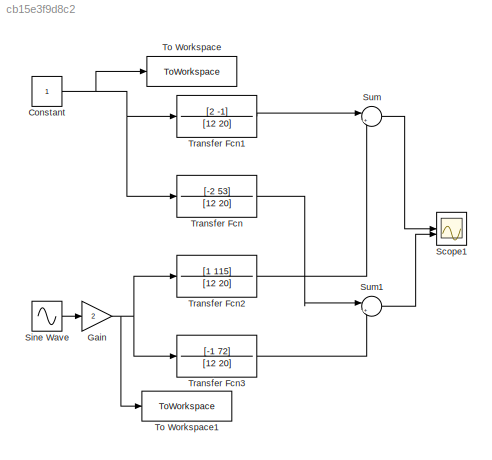
MODEL slx_cb15e3f9d8c2
KIND model
CONFIG AbsTol = auto
CONFIG EnableMultiTasking = off
CONFIG FixedStep = 0.0001
CONFIG MaxStep = auto
CONFIG MinStep = auto
CONFIG RelTol = 1e-3
CONFIG SampleTimeConstraint = Unconstrained
CONFIG SolverName = FixedStepAuto
CONFIG StartTime = 0.0
CONFIG StopTime = 50.0
BLOCK [Constant] Constant
  SampleTime = -1
BLOCK [Gain] Gain
  Gain = 2
BLOCK [Scope] Scope1
  Floating = off
  NumInputPorts = 2
  ScopeSpecificationString = Simulink.scopes.TimeScopeBlockCfg('CurrentConfiguration', extmgr.ConfigurationSet(extmgr.Configuration('Core','General UI',true),extmgr.Configuration('Core','Source UI',true),extmgr.Configuration('Sources','WiredSimulink',true,'DataLoggingVariableName','ScopeData1'),extmgr.Configuration('Visuals','Time Domain',true,'SerializedDisplays',{struct('MinYLimReal','-12.39699','MaxYLimReal','12.45749','YL...<+1375ch>
BLOCK [Sin] Sine Wave
  SampleTime = 0
BLOCK [Sum] Sum
  Inputs = |++
BLOCK [Sum] Sum1
  Inputs = |++
BLOCK [ToWorkspace] To Workspace
  FixptAsFi = on
  MaxDataPoints = inf
  SampleTime = -1
  SaveFormat = Timeseries
  VariableName = simout
BLOCK [ToWorkspace] To Workspace1
  FixptAsFi = on
  MaxDataPoints = inf
  SampleTime = -1
  SaveFormat = Timeseries
  VariableName = simout1
BLOCK [TransferFcn] Transfer Fcn
  Denominator = [12 20]
  Numerator = [-2 53]
BLOCK [TransferFcn] Transfer Fcn1
  Denominator = [12 20]
  Numerator = [2 -1]
BLOCK [TransferFcn] Transfer Fcn2
  Denominator = [12 20]
  Numerator = [1 115]
BLOCK [TransferFcn] Transfer Fcn3
  Denominator = [12 20]
  Numerator = [-1 72]
NET Constant:1 -> To Workspace:1, Transfer Fcn1:1, Transfer Fcn:1
NET Gain:1 -> To Workspace1:1, Transfer Fcn2:1, Transfer Fcn3:1
LINE Sine Wave:1 -> Gain:1
LINE Sum1:1 -> Scope1:2
LINE Sum:1 -> Scope1:1
LINE Transfer Fcn1:1 -> Sum:1
LINE Transfer Fcn2:1 -> Sum:2
LINE Transfer Fcn3:1 -> Sum1:2
LINE Transfer Fcn:1 -> Sum1:1
note: NET lines group one-source signal fan-out (src -> all destinations, sorted); 1:1 wires keep LINE
